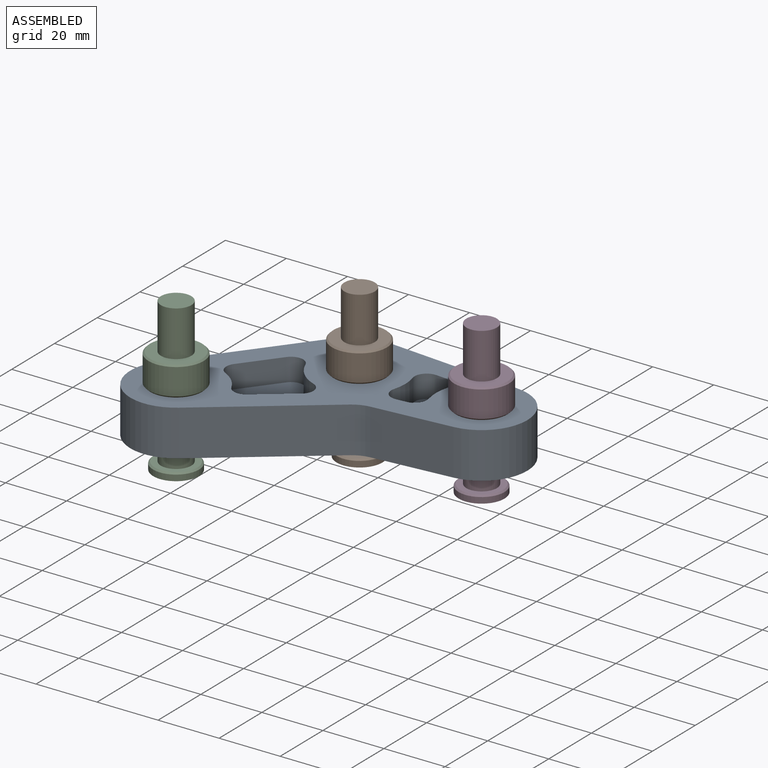
[diagram: assembled view]
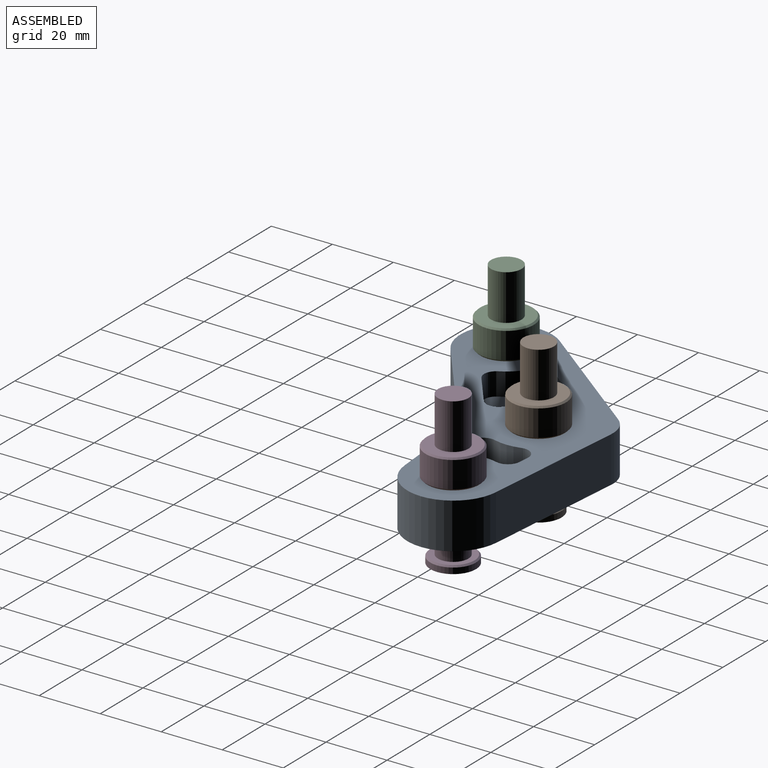
[diagram: assembled view, second angle]
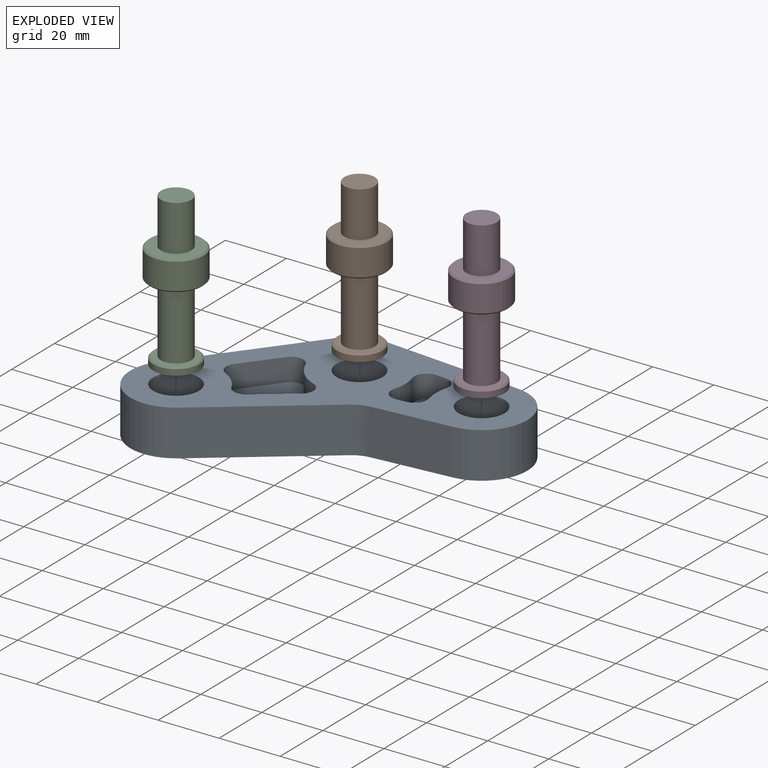
[diagram: exploded view]
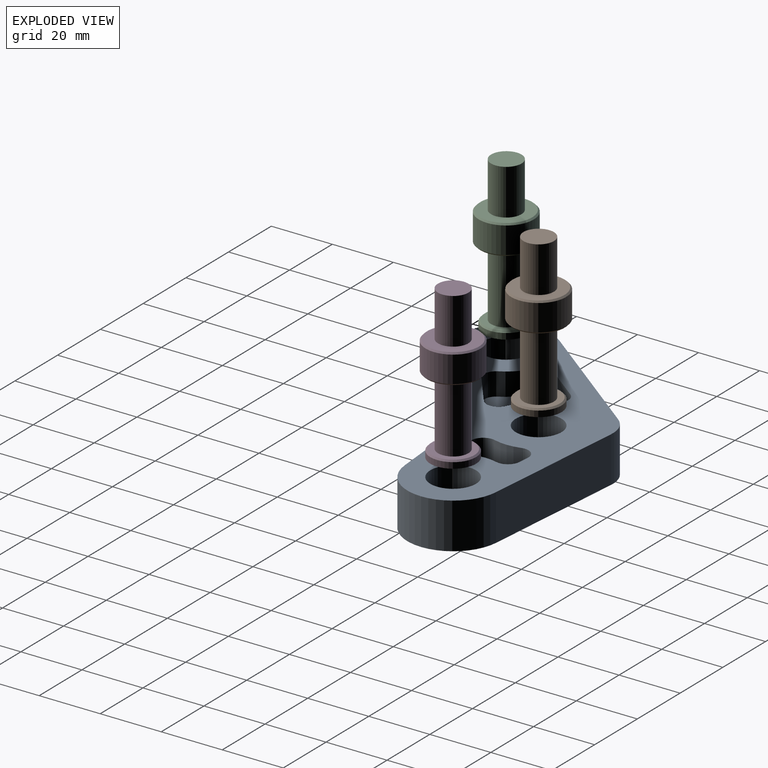
[diagram: exploded view, second angle]
ASSEMBLY  parts=4 mates=3
PART A: 31 faces, bbox 105.4x69.5x15 mm
  f0: cylinder r=4mm len=7.5mm, axis (0,0,1), area 52.7mm2, adj f3,f21,f24,f29
  f1: cylinder r=4mm len=7.5mm, axis (0,0,1), area 52.7mm2, adj f3,f22,f23,f30
  f2: cylinder r=4mm len=7.5mm, axis (0,0,1), area 52.7mm2, adj f3,f21,f26,f29
  f3: plane 105.36x69.53mm, normal (0,0,1), area 2728.7mm2, adj f0,f1,f2,f4,f6,f7,f8,f9
  f4: cylinder r=15mm len=29.89mm, axis (0,0,1), area 667.6mm2, adj f3,f5,f9,f13
  f5: plane 105.36x69.53mm, normal (0,0,-1), area 3375.4mm2, adj f4,f6,f7,f8,f9,f10,f11,f12
  f6: cylinder r=7.5mm len=15mm, axis (0,0,1), area 706.9mm2, adj f3,f5
  f7: cylinder r=7.5mm len=15mm, axis (0,0,1), area 706.9mm2, adj f3,f5
  f8: cylinder r=7.5mm len=15mm, axis (0,0,1), area 706.9mm2, adj f3,f5
  f9: plane 25.79x15mm, normal (0.09,-1,0), area 388.3mm2, adj f3,f4,f5,f15
  f10: plane 36.53x28.03mm, normal (0.61,-0.79,0), area 690.6mm2, adj f3,f5,f11,f15
  f11: cylinder r=15mm len=24.13mm, axis (0,0,1), area 648mm2, adj f3,f5,f10,f12
  f12: plane 41.49x31.83mm, normal (-0.79,0.61,0), area 784.4mm2, adj f3,f5,f11,f14
  f13: plane 47.93x15mm, normal (0.09,1,0), area 721.6mm2, adj f3,f4,f5,f14
  f14: cylinder r=10mm len=15mm, axis (0,0,1), area 150.5mm2, adj f3,f5,f12,f13
  f15: cylinder r=10mm len=15mm, axis (0,0,-1), area 85.1mm2, adj f3,f5,f9,f10
  f16: cylinder r=4mm len=7.5mm, axis (0,0,1), area 58.4mm2, adj f3,f26,f27,f29
  f17: cylinder r=4mm len=7.5mm, axis (0,0,1), area 63.8mm2, adj f3,f25,f28,f30
  f18: cylinder r=4mm len=7.5mm, axis (0,0,1), area 63.8mm2, adj f3,f23,f28,f30
  f19: cylinder r=4mm len=7.5mm, axis (0,0,1), area 58.4mm2, adj f3,f24,f27,f29
  f20: cylinder r=4mm len=7.5mm, axis (0,0,1), area 52.7mm2, adj f3,f22,f25,f30
  f21: cylinder r=15mm len=8.08mm, axis (0,0,1), area 61.3mm2, adj f0,f2,f3,f29
  f22: cylinder r=15mm len=7.5mm, axis (0,0,1), area 71.1mm2, adj f1,f3,f20,f30
  f23: plane 11.71x8.98mm, normal (0.79,-0.61,0), area 110.7mm2, adj f1,f3,f18,f30
  f24: plane 7.5x3.49mm, normal (-0.09,-1,0), area 26.3mm2, adj f0,f3,f19,f29
  f25: plane 11.71x8.98mm, normal (-0.61,0.79,0), area 110.7mm2, adj f3,f17,f20,f30
  f26: plane 7.5x3.49mm, normal (-0.09,1,0), area 26.3mm2, adj f2,f3,f16,f29
  f27: cylinder r=15mm len=8.56mm, axis (0,0,1), area 65.1mm2, adj f3,f16,f19,f29
  f28: cylinder r=15mm len=8.75mm, axis (0,0,1), area 95.6mm2, adj f3,f17,f18,f30
  f29: plane 18.84x11.49mm, normal (0,0,1), area 189.9mm2, adj f0,f2,f16,f19,f21,f24,f26,f27
  f30: plane 28.06x28.06mm, normal (0,0,1), area 456.8mm2, adj f1,f17,f18,f20,f22,f23,f25,f28
PART B: 12 faces, bbox 18x18x50 mm
  f0: plane 10x10mm, normal (0,0,1), area 78.5mm2, adj f1
  f1: cylinder r=5mm len=15mm, axis (0,0,1), area 471.2mm2, adj f0,f2
  f2: plane 17x17mm, normal (0,0,1), area 148.4mm2, adj f1,f10
  f3: cylinder r=9mm len=18mm, axis (0,0,1), area 493.7mm2, adj f10,f11
  f4: plane 17x17mm, normal (0,0,-1), area 148.4mm2, adj f5,f11
  f5: cylinder r=5mm len=22.82mm, axis (0,0,1), area 716.8mm2, adj f4,f6
  f6: plane 14x14mm, normal (0,0,1), area 75.4mm2, adj f5,f9
  f7: cylinder r=7.5mm len=15mm, axis (0,0,1), area 92mm2, adj f8,f9
  f8: plane 15x15mm, normal (0,0,-1), area 176.7mm2, adj f7
  f9: cone r=7mm half-angle=45deg, axis (0,0,-1), area 32.2mm2, adj f6,f7
  f10: cone r=8.5mm half-angle=45deg, axis (0,0,-1), area 38.9mm2, adj f2,f3
  f11: cone r=9mm half-angle=45deg, axis (0,0,1), area 38.9mm2, adj f3,f4
PART C: same geometry as B
PART D: same geometry as B
PLACE A t=(50.49,25,1.43)mm
PLACE B t=(41.49,25,16.43)mm
PLACE C t=(6.14,-10.36,16.43)mm
PLACE D t=(81.49,25,16.43)mm
MATE revolute D.f9 <-> A.f7  axis (0,0,-1) through (90.49,25,16.43)mm
MATE revolute B.f9 <-> A.f8  axis (0,0,-1) through (50.49,25,16.43)mm
MATE revolute C.f9 <-> A.f6  axis (0,0,-1) through (15.14,-10.36,16.43)mm
